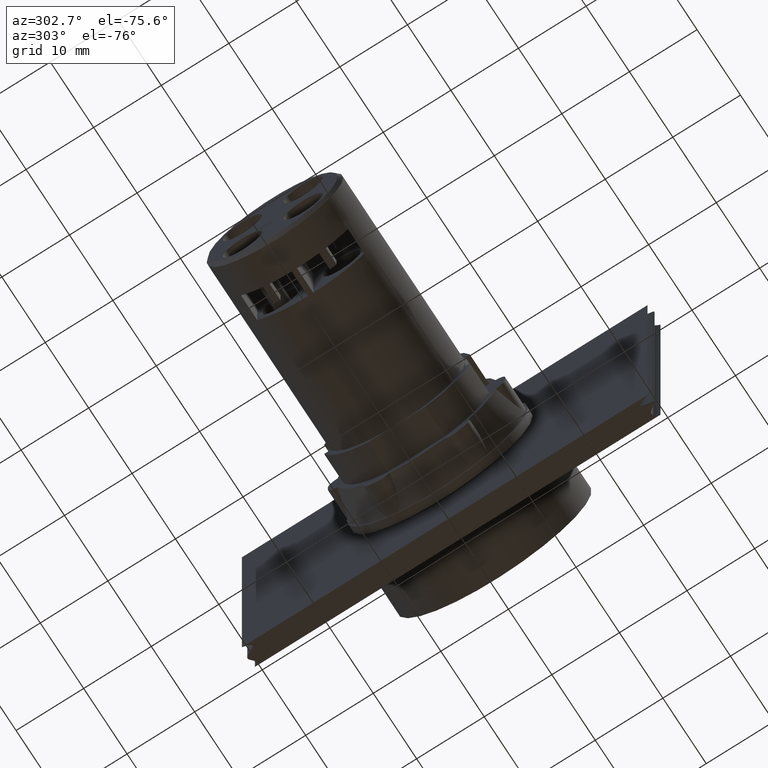
[diagram: clean part render]
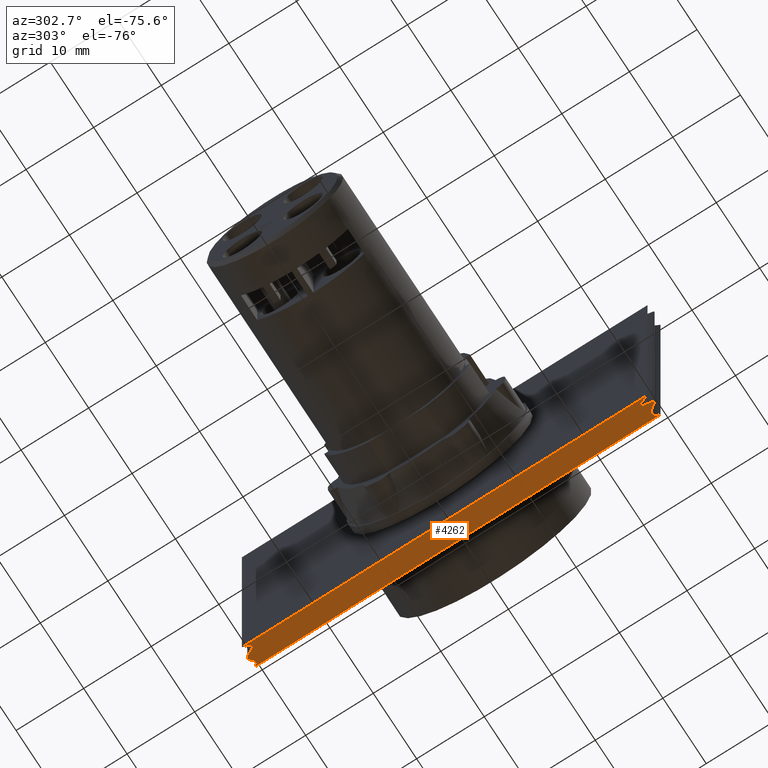
[diagram: same view with one face highlighted and labeled with its STEP entity id]
A machine part, auxiliary view. The second image highlights one B-rep face of the part: STEP entity #4262.
In plain terms, the highlighted planar face has unit normal (0, 0, -1).
Its self-contained STEP definition (entity closure, byte-faithful):
#4100=CARTESIAN_POINT('',(-15.704183619849179,-2.725398273954287,45.0));
#4101=VERTEX_POINT('',#4100);
#4102=CARTESIAN_POINT('',(-12.704183619849179,-2.725398273954287,45.0));
#4103=VERTEX_POINT('',#4102);
#4104=CARTESIAN_POINT('',(-15.704183619849177,-2.725398273954286,45.0));
#4105=CARTESIAN_POINT('',(-14.667084388146536,-4.961008747338168,45.0));
#4106=CARTESIAN_POINT('',(-13.964099132856656,2.032835085571791,45.0));
#4107=CARTESIAN_POINT('',(-13.683988853155304,-7.243589001706696,45.0));
#4108=CARTESIAN_POINT('',(-12.704183619849175,-2.725398273954286,45.0));
#4109=QUASI_UNIFORM_CURVE('',4,(#4104,#4105,#4106,#4107,#4108),.UNSPECIFIED.,.F.,.U.);
#4110=EDGE_CURVE('',#4101,#4103,#4109,.T.);
#4144=CARTESIAN_POINT('',(-12.704183619849172,-62.725398273954283,45.0));
#4145=VERTEX_POINT('',#4144);
#4146=CARTESIAN_POINT('',(-12.704183619849179,-2.725398273954287,45.0));
#4147=DIRECTION('',(0.0,-1.0,0.0));
#4148=VECTOR('',#4147,60.0);
#4149=LINE('',#4146,#4148);
#4150=EDGE_CURVE('',#4103,#4145,#4149,.T.);
#4184=CARTESIAN_POINT('',(-15.704183619849179,-62.725398273954283,45.0));
#4185=VERTEX_POINT('',#4184);
#4186=CARTESIAN_POINT('',(-12.704183619849177,-62.725398273954298,45.0));
#4187=CARTESIAN_POINT('',(-14.371498841514271,-57.028426828334801,45.0));
#4188=CARTESIAN_POINT('',(-13.047229203726467,-69.825373706267470,45.0));
#4189=CARTESIAN_POINT('',(-14.283734517597093,-58.710287807173117,45.0));
#4190=CARTESIAN_POINT('',(-15.704183619849182,-62.725398273954283,45.0));
#4191=QUASI_UNIFORM_CURVE('',4,(#4186,#4187,#4188,#4189,#4190),.UNSPECIFIED.,.F.,.U.);
#4192=EDGE_CURVE('',#4145,#4185,#4191,.T.);
#4219=CARTESIAN_POINT('',(-15.704183619849179,-62.725398273954283,45.0));
#4220=DIRECTION('',(0.0,1.0,0.0));
#4221=VECTOR('',#4220,60.0);
#4222=LINE('',#4219,#4221);
#4223=EDGE_CURVE('',#4185,#4101,#4222,.T.);
#4251=CARTESIAN_POINT('',(-14.194110455510163,-33.005767774691193,45.0));
#4252=DIRECTION('',(0.0,0.0,1.0));
#4253=DIRECTION('',(1.0,0.0,0.0));
#4254=AXIS2_PLACEMENT_3D('',#4251,#4252,#4253);
#4255=PLANE('',#4254);
#4256=ORIENTED_EDGE('',*,*,#4110,.F.);
#4257=ORIENTED_EDGE('',*,*,#4223,.F.);
#4258=ORIENTED_EDGE('',*,*,#4192,.F.);
#4259=ORIENTED_EDGE('',*,*,#4150,.F.);
#4260=EDGE_LOOP('',(#4256,#4257,#4258,#4259));
#4261=FACE_OUTER_BOUND('',#4260,.T.);
#4262=ADVANCED_FACE('',(#4261),#4255,.T.);